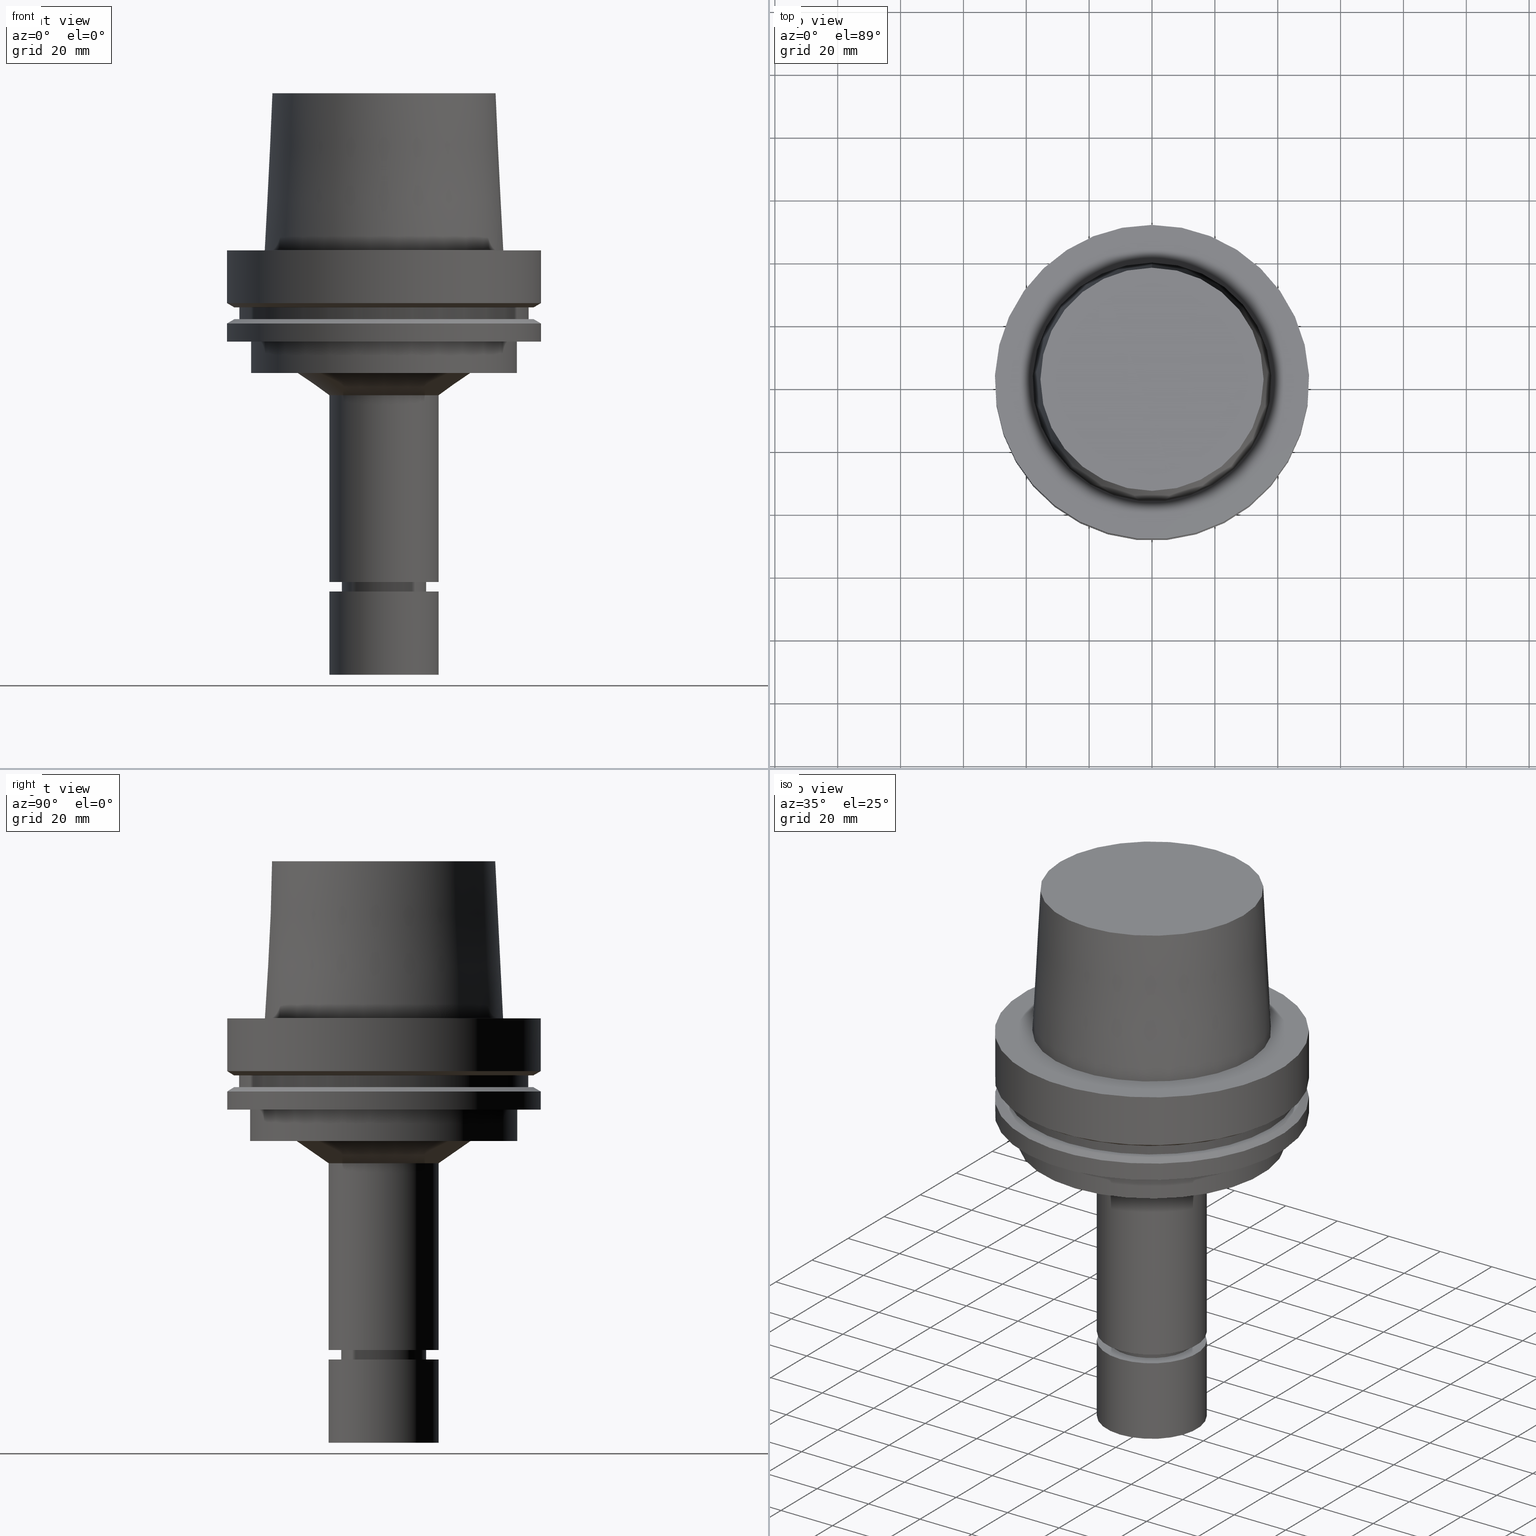
[diagram: canonical four-view strip — front | top / right | iso, engineering-drawing reading convention]
A machine part, canonical four-view strip (front | top / right | iso — engineering-drawing reading convention). The complete STEP part file that produces these views, byte-faithful:
ISO-10303-21;
HEADER;
FILE_DESCRIPTION((''),'1');
FILE_NAME('V:/90_\X2\53D65F9730C730FC30BF\X0\/00_\X2\6DE18DEF30C730FC30BF\X0\/ALL/HSK-BKUS\X2\52A05DE556F3\X0\_201801/HSK-A100-MEGAER/HSK-A100-MEGAER20-135NL.stp','2018-02-01T04:10:40',(''),(''),'Spatial Interop R21 SP3','Kubotek KeyCreator 2011 V10.0.2 (22737)',' ');
FILE_SCHEMA(('automotive_design'));
ENDSEC;
DATA;
#1=MECHANICAL_DESIGN_GEOMETRIC_PRESENTATION_REPRESENTATION(' ',(#14,#15,#16,#17,#18,#19,#20,#21,#22,#23,#24,#25,#26,#27,#28,#29,#30,#31,#32,#33,#34,#35,#36,#37,#38,#39,#40,#41,#42,#43,#44,#45,#46,#47,#48,#49,#50,#51,#52,#53,#54,#55,#56,#57,#58,#59,#60,#61),#10);
#2=PRODUCT_DEFINITION_CONTEXT('',#62,'design');
#3=APPLICATION_PROTOCOL_DEFINITION('INTERNATIONAL STANDARD','automotive_design',1994,#62);
#4=PRODUCT_CATEGORY_RELATIONSHIP('NONE','NONE',#63,#64);
#5=SHAPE_DEFINITION_REPRESENTATION(#65,#66);
#6=PRODUCT_DEFINITION_CONTEXT('',#67,'design');
#7=APPLICATION_PROTOCOL_DEFINITION('INTERNATIONAL STANDARD','automotive_design',1994,#67);
#8=PRODUCT_CATEGORY_RELATIONSHIP('NONE','NONE',#68,#69);
#9=SHAPE_DEFINITION_REPRESENTATION(#70,#71);
#10= (GEOMETRIC_REPRESENTATION_CONTEXT(3)GLOBAL_UNCERTAINTY_ASSIGNED_CONTEXT((#74))GLOBAL_UNIT_ASSIGNED_CONTEXT((#76,#77,#78))REPRESENTATION_CONTEXT('NONE','WORKSPACE'));
#14=STYLED_ITEM('',(#80),#81);
#15=STYLED_ITEM('',(#82),#83);
#16=STYLED_ITEM('',(#84),#85);
#17=STYLED_ITEM('',(#86,#87),#88);
#18=STYLED_ITEM('',(#89),#90);
#19=STYLED_ITEM('',(#91,#92),#93);
#20=STYLED_ITEM('',(#94),#95);
#21=STYLED_ITEM('',(#96,#97),#98);
#22=STYLED_ITEM('',(#99,#100),#101);
#23=STYLED_ITEM('',(#102,#103),#104);
#24=STYLED_ITEM('',(#105),#106);
#25=STYLED_ITEM('',(#107,#108),#109);
#26=STYLED_ITEM('',(#110,#111),#112);
#27=STYLED_ITEM('',(#113,#114),#115);
#28=STYLED_ITEM('',(#116),#117);
#29=STYLED_ITEM('',(#118),#119);
#30=STYLED_ITEM('',(#120),#121);
#31=STYLED_ITEM('',(#122),#123);
#32=STYLED_ITEM('',(#124),#125);
#33=STYLED_ITEM('',(#126,#127),#128);
#34=STYLED_ITEM('',(#129,#130),#131);
#35=STYLED_ITEM('',(#132,#133),#134);
#36=STYLED_ITEM('',(#135),#136);
#37=STYLED_ITEM('',(#137,#138),#139);
#38=STYLED_ITEM('',(#140),#141);
#39=STYLED_ITEM('',(#142,#143),#144);
#40=STYLED_ITEM('',(#145,#146),#147);
#41=STYLED_ITEM('',(#148,#149),#150);
#42=STYLED_ITEM('',(#151),#152);
#43=STYLED_ITEM('',(#153,#154),#155);
#44=STYLED_ITEM('',(#156,#157),#158);
#45=STYLED_ITEM('',(#159),#160);
#46=STYLED_ITEM('',(#161),#162);
#47=STYLED_ITEM('',(#163,#164),#165);
#48=STYLED_ITEM('',(#166),#167);
#49=STYLED_ITEM('',(#168,#169),#170);
#50=STYLED_ITEM('',(#171),#172);
#51=STYLED_ITEM('',(#173,#174),#175);
#52=STYLED_ITEM('',(#176,#177),#178);
#53=STYLED_ITEM('',(#179,#180),#181);
#54=STYLED_ITEM('',(#182),#183);
#55=STYLED_ITEM('',(#184),#185);
#56=STYLED_ITEM('',(#186,#187),#188);
#57=STYLED_ITEM('',(#189,#190),#191);
#58=STYLED_ITEM('',(#192,#193),#194);
#59=STYLED_ITEM('',(#195,#196),#197);
#60=STYLED_ITEM('',(#198),#199);
#61=STYLED_ITEM('',(#200),#201);
#62=APPLICATION_CONTEXT(' ');
#63=PRODUCT_CATEGORY('part','NONE');
#64=PRODUCT_RELATED_PRODUCT_CATEGORY('detail',' ',(#202));
#65=PRODUCT_DEFINITION_SHAPE('NONE','NONE',#203);
#66=ADVANCED_BREP_SHAPE_REPRESENTATION('Unnamed[1]',(#178,#204),#10);
#67=APPLICATION_CONTEXT(' ');
#68=PRODUCT_CATEGORY('part','NONE');
#69=PRODUCT_RELATED_PRODUCT_CATEGORY('detail',' ',(#205));
#70=PRODUCT_DEFINITION_SHAPE('NONE','NONE',#206);
#71=ADVANCED_BREP_SHAPE_REPRESENTATION('Unnamed[1]',(#181,#207),#10);
#74=UNCERTAINTY_MEASURE_WITH_UNIT(LENGTH_MEASURE(1.0E-006),#76,'','');
#76= (CONVERSION_BASED_UNIT('MILLIMETRE',#210)LENGTH_UNIT()NAMED_UNIT(#213));
#77= (NAMED_UNIT(#215)PLANE_ANGLE_UNIT()SI_UNIT($,.RADIAN.));
#78= (NAMED_UNIT(#215)SOLID_ANGLE_UNIT()SI_UNIT($,.STERADIAN.));
#80=PRESENTATION_STYLE_ASSIGNMENT((#221));
#81=EDGE_CURVE('Unnamed[1]',#222,#222,#223,.T.);
#82=PRESENTATION_STYLE_ASSIGNMENT((#224));
#83=EDGE_CURVE('Unnamed[1]',#225,#225,#226,.T.);
#84=PRESENTATION_STYLE_ASSIGNMENT((#227));
#85=EDGE_CURVE('Unnamed[1]',#228,#228,#229,.T.);
#86=PRESENTATION_STYLE_ASSIGNMENT((#230));
#87=PRESENTATION_STYLE_ASSIGNMENT((#231));
#88=ADVANCED_FACE('Unnamed[1]',(#232),#233,.T.);
#89=PRESENTATION_STYLE_ASSIGNMENT((#234));
#90=EDGE_CURVE('Unnamed[1]',#235,#235,#236,.T.);
#91=PRESENTATION_STYLE_ASSIGNMENT((#237));
#92=PRESENTATION_STYLE_ASSIGNMENT((#238));
#93=ADVANCED_FACE('Unnamed[1]',(#239,#240),#241,.T.);
#94=PRESENTATION_STYLE_ASSIGNMENT((#242));
#95=EDGE_CURVE('Unnamed[1]',#243,#243,#244,.T.);
#96=PRESENTATION_STYLE_ASSIGNMENT((#245));
#97=PRESENTATION_STYLE_ASSIGNMENT((#246));
#98=ADVANCED_FACE('Unnamed[1]',(#247,#248),#249,.T.);
#99=PRESENTATION_STYLE_ASSIGNMENT((#250));
#100=PRESENTATION_STYLE_ASSIGNMENT((#251));
#101=ADVANCED_FACE('Unnamed[1]',(#252),#253,.T.);
#102=PRESENTATION_STYLE_ASSIGNMENT((#254));
#103=PRESENTATION_STYLE_ASSIGNMENT((#255));
#104=ADVANCED_FACE('Unnamed[1]',(#256,#257),#258,.T.);
#105=PRESENTATION_STYLE_ASSIGNMENT((#259));
#106=EDGE_CURVE('Unnamed[1]',#260,#260,#261,.T.);
#107=PRESENTATION_STYLE_ASSIGNMENT((#262));
#108=PRESENTATION_STYLE_ASSIGNMENT((#263));
#109=ADVANCED_FACE('Unnamed[1]',(#264,#265),#266,.T.);
#110=PRESENTATION_STYLE_ASSIGNMENT((#267));
#111=PRESENTATION_STYLE_ASSIGNMENT((#268));
#112=ADVANCED_FACE('Unnamed[1]',(#269,#270),#271,.T.);
#113=PRESENTATION_STYLE_ASSIGNMENT((#272));
#114=PRESENTATION_STYLE_ASSIGNMENT((#273));
#115=ADVANCED_FACE('Unnamed[1]',(#274,#275),#276,.T.);
#116=PRESENTATION_STYLE_ASSIGNMENT((#277));
#117=EDGE_CURVE('Unnamed[1]',#278,#278,#279,.T.);
#118=PRESENTATION_STYLE_ASSIGNMENT((#280));
#119=EDGE_CURVE('Unnamed[1]',#281,#281,#282,.T.);
#120=PRESENTATION_STYLE_ASSIGNMENT((#283));
#121=EDGE_CURVE('Unnamed[1]',#284,#284,#285,.T.);
#122=PRESENTATION_STYLE_ASSIGNMENT((#286));
#123=EDGE_CURVE('Unnamed[1]',#287,#287,#288,.T.);
#124=PRESENTATION_STYLE_ASSIGNMENT((#289));
#125=EDGE_CURVE('Unnamed[1]',#290,#290,#291,.T.);
#126=PRESENTATION_STYLE_ASSIGNMENT((#292));
#127=PRESENTATION_STYLE_ASSIGNMENT((#293));
#128=ADVANCED_FACE('Unnamed[1]',(#294,#295),#296,.T.);
#129=PRESENTATION_STYLE_ASSIGNMENT((#297));
#130=PRESENTATION_STYLE_ASSIGNMENT((#298));
#131=ADVANCED_FACE('Unnamed[1]',(#299,#300),#301,.T.);
#132=PRESENTATION_STYLE_ASSIGNMENT((#302));
#133=PRESENTATION_STYLE_ASSIGNMENT((#303));
#134=ADVANCED_FACE('Unnamed[1]',(#304,#305),#306,.T.);
#135=PRESENTATION_STYLE_ASSIGNMENT((#307));
#136=EDGE_CURVE('Unnamed[1]',#308,#308,#309,.T.);
#137=PRESENTATION_STYLE_ASSIGNMENT((#310));
#138=PRESENTATION_STYLE_ASSIGNMENT((#311));
#139=ADVANCED_FACE('Unnamed[1]',(#312,#313),#314,.T.);
#140=PRESENTATION_STYLE_ASSIGNMENT((#315));
#141=EDGE_CURVE('Unnamed[1]',#316,#316,#317,.T.);
#142=PRESENTATION_STYLE_ASSIGNMENT((#318));
#143=PRESENTATION_STYLE_ASSIGNMENT((#319));
#144=ADVANCED_FACE('Unnamed[1]',(#320,#321),#322,.T.);
#145=PRESENTATION_STYLE_ASSIGNMENT((#323));
#146=PRESENTATION_STYLE_ASSIGNMENT((#324));
#147=ADVANCED_FACE('Unnamed[1]',(#325,#326),#327,.T.);
#148=PRESENTATION_STYLE_ASSIGNMENT((#328));
#149=PRESENTATION_STYLE_ASSIGNMENT((#329));
#150=ADVANCED_FACE('Unnamed[1]',(#330),#331,.T.);
#151=PRESENTATION_STYLE_ASSIGNMENT((#332));
#152=EDGE_CURVE('Unnamed[1]',#333,#333,#334,.T.);
#153=PRESENTATION_STYLE_ASSIGNMENT((#335));
#154=PRESENTATION_STYLE_ASSIGNMENT((#336));
#155=ADVANCED_FACE('Unnamed[1]',(#337,#338),#339,.T.);
#156=PRESENTATION_STYLE_ASSIGNMENT((#340));
#157=PRESENTATION_STYLE_ASSIGNMENT((#341));
#158=ADVANCED_FACE('Unnamed[1]',(#342,#343),#344,.T.);
#159=PRESENTATION_STYLE_ASSIGNMENT((#345));
#160=EDGE_CURVE('Unnamed[1]',#346,#346,#347,.T.);
#161=PRESENTATION_STYLE_ASSIGNMENT((#348));
#162=EDGE_CURVE('Unnamed[1]',#349,#349,#350,.T.);
#163=PRESENTATION_STYLE_ASSIGNMENT((#351));
#164=PRESENTATION_STYLE_ASSIGNMENT((#352));
#165=ADVANCED_FACE('Unnamed[1]',(#353,#354),#355,.T.);
#166=PRESENTATION_STYLE_ASSIGNMENT((#356));
#167=EDGE_CURVE('Unnamed[1]',#357,#357,#358,.T.);
#168=PRESENTATION_STYLE_ASSIGNMENT((#359));
#169=PRESENTATION_STYLE_ASSIGNMENT((#360));
#170=ADVANCED_FACE('Unnamed[1]',(#361,#362),#363,.T.);
#171=PRESENTATION_STYLE_ASSIGNMENT((#364));
#172=EDGE_CURVE('Unnamed[1]',#365,#365,#366,.T.);
#173=PRESENTATION_STYLE_ASSIGNMENT((#367));
#174=PRESENTATION_STYLE_ASSIGNMENT((#368));
#175=ADVANCED_FACE('Unnamed[1]',(#369,#370),#371,.T.);
#176=PRESENTATION_STYLE_ASSIGNMENT((#372));
#177=PRESENTATION_STYLE_ASSIGNMENT((#373));
#178=MANIFOLD_SOLID_BREP('Unnamed[1]',#374);
#179=PRESENTATION_STYLE_ASSIGNMENT((#375));
#180=PRESENTATION_STYLE_ASSIGNMENT((#376));
#181=MANIFOLD_SOLID_BREP('Unnamed[1]',#377);
#182=PRESENTATION_STYLE_ASSIGNMENT((#378));
#183=EDGE_CURVE('Unnamed[1]',#379,#379,#380,.T.);
#184=PRESENTATION_STYLE_ASSIGNMENT((#381));
#185=EDGE_CURVE('Unnamed[1]',#382,#382,#383,.T.);
#186=PRESENTATION_STYLE_ASSIGNMENT((#384));
#187=PRESENTATION_STYLE_ASSIGNMENT((#385));
#188=ADVANCED_FACE('Unnamed[1]',(#386,#387),#388,.T.);
#189=PRESENTATION_STYLE_ASSIGNMENT((#389));
#190=PRESENTATION_STYLE_ASSIGNMENT((#390));
#191=ADVANCED_FACE('Unnamed[1]',(#391,#392),#393,.T.);
#192=PRESENTATION_STYLE_ASSIGNMENT((#394));
#193=PRESENTATION_STYLE_ASSIGNMENT((#395));
#194=ADVANCED_FACE('Unnamed[1]',(#396,#397),#398,.T.);
#195=PRESENTATION_STYLE_ASSIGNMENT((#399));
#196=PRESENTATION_STYLE_ASSIGNMENT((#400));
#197=ADVANCED_FACE('Unnamed[1]',(#401),#402,.T.);
#198=PRESENTATION_STYLE_ASSIGNMENT((#403));
#199=EDGE_CURVE('Unnamed[1]',#404,#404,#405,.T.);
#200=PRESENTATION_STYLE_ASSIGNMENT((#406));
#201=EDGE_CURVE('Unnamed[1]',#407,#407,#408,.T.);
#202=PRODUCT('Unnamed[1]','Unnamed[1]','PART-Unnamed[1]-DESC',(#409));
#203=PRODUCT_DEFINITION('NONE','NONE',#410,#2);
#204=AXIS2_PLACEMENT_3D('',#411,#412,#413);
#205=PRODUCT('Unnamed[1]','Unnamed[1]','PART-Unnamed[1]-DESC',(#414));
#206=PRODUCT_DEFINITION('NONE','NONE',#415,#6);
#207=AXIS2_PLACEMENT_3D('',#416,#417,#418);
#210=LENGTH_MEASURE_WITH_UNIT(LENGTH_MEASURE(1.0),#419);
#213=DIMENSIONAL_EXPONENTS(1.0,0.0,0.0,0.0,0.0,0.0,0.0);
#215=DIMENSIONAL_EXPONENTS(0.0,0.0,0.0,0.0,0.0,0.0,0.0);
#221=CURVE_STYLE('',#420,POSITIVE_LENGTH_MEASURE(1000.0),#421);
#222=VERTEX_POINT('',#422);
#223=CIRCLE('',#423,37.9999999999349);
#224=CURVE_STYLE('',#424,POSITIVE_LENGTH_MEASURE(1000.0),#425);
#225=VERTEX_POINT('',#426);
#226=CIRCLE('',#427,42.5);
#227=CURVE_STYLE('',#428,POSITIVE_LENGTH_MEASURE(1000.0),#429);
#228=VERTEX_POINT('',#430);
#229=CIRCLE('',#431,13.5000000000005);
#230=SURFACE_STYLE_USAGE(.BOTH.,#432);
#231=CURVE_STYLE('',#433,POSITIVE_LENGTH_MEASURE(1000.0),#434);
#232=FACE_OUTER_BOUND('',#435,.T.);
#233=PLANE('',#436);
#234=CURVE_STYLE('',#437,POSITIVE_LENGTH_MEASURE(1000.0),#438);
#235=VERTEX_POINT('',#439);
#236=CIRCLE('',#440,17.4999999999945);
#237=SURFACE_STYLE_USAGE(.BOTH.,#441);
#238=CURVE_STYLE('',#442,POSITIVE_LENGTH_MEASURE(1000.0),#443);
#239=FACE_OUTER_BOUND('',#444,.T.);
#240=FACE_BOUND('',#445,.T.);
#241=PLANE('',#446);
#242=CURVE_STYLE('',#447,POSITIVE_LENGTH_MEASURE(1000.0),#448);
#243=VERTEX_POINT('',#449);
#244=CIRCLE('',#450,13.4999999999908);
#245=SURFACE_STYLE_USAGE(.BOTH.,#451);
#246=CURVE_STYLE('',#452,POSITIVE_LENGTH_MEASURE(1000.0),#453);
#247=FACE_BOUND('',#454,.T.);
#248=FACE_OUTER_BOUND('',#455,.T.);
#249=PLANE('',#456);
#250=SURFACE_STYLE_USAGE(.BOTH.,#457);
#251=CURVE_STYLE('',#458,POSITIVE_LENGTH_MEASURE(1000.0),#459);
#252=FACE_OUTER_BOUND('',#460,.T.);
#253=PLANE('',#461);
#254=SURFACE_STYLE_USAGE(.BOTH.,#462);
#255=CURVE_STYLE('',#463,POSITIVE_LENGTH_MEASURE(1000.0),#464);
#256=FACE_BOUND('',#465,.T.);
#257=FACE_BOUND('',#466,.T.);
#258=CONICAL_SURFACE('',#467,22.5717863357245,0.962446965226531);
#259=CURVE_STYLE('',#468,POSITIVE_LENGTH_MEASURE(1000.0),#469);
#260=VERTEX_POINT('',#470);
#261=CIRCLE('',#471,50.0);
#262=SURFACE_STYLE_USAGE(.BOTH.,#472);
#263=CURVE_STYLE('',#473,POSITIVE_LENGTH_MEASURE(1000.0),#474);
#264=FACE_BOUND('',#475,.T.);
#265=FACE_BOUND('',#476,.T.);
#266=CYLINDRICAL_SURFACE('',#477,42.5);
#267=SURFACE_STYLE_USAGE(.BOTH.,#478);
#268=CURVE_STYLE('',#479,POSITIVE_LENGTH_MEASURE(1000.0),#480);
#269=FACE_BOUND('',#481,.T.);
#270=FACE_BOUND('',#482,.T.);
#271=CONICAL_SURFACE('',#483,36.7500000007484,0.0499583956894843);
#272=SURFACE_STYLE_USAGE(.BOTH.,#484);
#273=CURVE_STYLE('',#485,POSITIVE_LENGTH_MEASURE(1000.0),#486);
#274=FACE_BOUND('',#487,.T.);
#275=FACE_OUTER_BOUND('',#488,.T.);
#276=PLANE('',#489);
#277=CURVE_STYLE('',#490,POSITIVE_LENGTH_MEASURE(1000.0),#491);
#278=VERTEX_POINT('',#492);
#279=CIRCLE('',#493,12.4999999999999);
#280=CURVE_STYLE('',#494,POSITIVE_LENGTH_MEASURE(1000.0),#495);
#281=VERTEX_POINT('',#496);
#282=CIRCLE('',#497,17.5);
#283=CURVE_STYLE('',#498,POSITIVE_LENGTH_MEASURE(1000.0),#499);
#284=VERTEX_POINT('',#500);
#285=CIRCLE('',#501,17.5);
#286=CURVE_STYLE('',#502,POSITIVE_LENGTH_MEASURE(1000.0),#503);
#287=VERTEX_POINT('',#504);
#288=CIRCLE('',#505,12.4999999999998);
#289=CURVE_STYLE('',#506,POSITIVE_LENGTH_MEASURE(1000.0),#507);
#290=VERTEX_POINT('',#508);
#291=CIRCLE('',#509,50.0);
#292=SURFACE_STYLE_USAGE(.BOTH.,#510);
#293=CURVE_STYLE('',#511,POSITIVE_LENGTH_MEASURE(1000.0),#512);
#294=FACE_BOUND('',#513,.T.);
#295=FACE_BOUND('',#514,.T.);
#296=CYLINDRICAL_SURFACE('',#515,50.0);
#297=SURFACE_STYLE_USAGE(.BOTH.,#516);
#298=CURVE_STYLE('',#517,POSITIVE_LENGTH_MEASURE(1000.0),#518);
#299=FACE_BOUND('',#519,.T.);
#300=FACE_OUTER_BOUND('',#520,.T.);
#301=PLANE('',#521);
#302=SURFACE_STYLE_USAGE(.BOTH.,#522);
#303=CURVE_STYLE('',#523,POSITIVE_LENGTH_MEASURE(1000.0),#524);
#304=FACE_BOUND('',#525,.T.);
#305=FACE_BOUND('',#526,.T.);
#306=CYLINDRICAL_SURFACE('',#527,17.4999999999972);
#307=CURVE_STYLE('',#528,POSITIVE_LENGTH_MEASURE(1000.0),#529);
#308=VERTEX_POINT('',#530);
#309=CIRCLE('',#531,42.5);
#310=SURFACE_STYLE_USAGE(.BOTH.,#532);
#311=CURVE_STYLE('',#533,POSITIVE_LENGTH_MEASURE(1000.0),#534);
#312=FACE_BOUND('',#535,.T.);
#313=FACE_BOUND('',#536,.T.);
#314=CONICAL_SURFACE('',#537,48.81129763,1.04719755328238);
#315=CURVE_STYLE('',#538,POSITIVE_LENGTH_MEASURE(1000.0),#539);
#316=VERTEX_POINT('',#540);
#317=CIRCLE('',#541,46.0);
#318=SURFACE_STYLE_USAGE(.BOTH.,#542);
#319=CURVE_STYLE('',#543,POSITIVE_LENGTH_MEASURE(1000.0),#544);
#320=FACE_BOUND('',#545,.T.);
#321=FACE_OUTER_BOUND('',#546,.T.);
#322=PLANE('',#547);
#323=SURFACE_STYLE_USAGE(.BOTH.,#548);
#324=CURVE_STYLE('',#549,POSITIVE_LENGTH_MEASURE(1000.0),#550);
#325=FACE_BOUND('',#551,.T.);
#326=FACE_BOUND('',#552,.T.);
#327=CONICAL_SURFACE('',#553,13.0000000000002,1.04719755119489);
#328=SURFACE_STYLE_USAGE(.BOTH.,#554);
#329=CURVE_STYLE('',#555,POSITIVE_LENGTH_MEASURE(1000.0),#556);
#330=FACE_OUTER_BOUND('',#557,.T.);
#331=PLANE('',#558);
#332=CURVE_STYLE('',#559,POSITIVE_LENGTH_MEASURE(1000.0),#560);
#333=VERTEX_POINT('',#561);
#334=CIRCLE('',#562,46.0);
#335=SURFACE_STYLE_USAGE(.BOTH.,#563);
#336=CURVE_STYLE('',#564,POSITIVE_LENGTH_MEASURE(1000.0),#565);
#337=FACE_BOUND('',#566,.T.);
#338=FACE_BOUND('',#567,.T.);
#339=CYLINDRICAL_SURFACE('',#568,17.5);
#340=SURFACE_STYLE_USAGE(.BOTH.,#569);
#341=CURVE_STYLE('',#570,POSITIVE_LENGTH_MEASURE(1000.0),#571);
#342=FACE_OUTER_BOUND('',#572,.T.);
#343=FACE_BOUND('',#573,.T.);
#344=PLANE('',#574);
#345=CURVE_STYLE('',#575,POSITIVE_LENGTH_MEASURE(1000.0),#576);
#346=VERTEX_POINT('',#577);
#347=CIRCLE('',#578,50.0);
#348=CURVE_STYLE('',#579,POSITIVE_LENGTH_MEASURE(1000.0),#580);
#349=VERTEX_POINT('',#581);
#350=CIRCLE('',#582,27.6435726714546);
#351=SURFACE_STYLE_USAGE(.BOTH.,#583);
#352=CURVE_STYLE('',#584,POSITIVE_LENGTH_MEASURE(1000.0),#585);
#353=FACE_BOUND('',#586,.T.);
#354=FACE_BOUND('',#587,.T.);
#355=CONICAL_SURFACE('',#588,48.81129763,1.04719755328238);
#356=CURVE_STYLE('',#589,POSITIVE_LENGTH_MEASURE(1000.0),#590);
#357=VERTEX_POINT('',#591);
#358=CIRCLE('',#592,17.4999999999999);
#359=SURFACE_STYLE_USAGE(.BOTH.,#593);
#360=CURVE_STYLE('',#594,POSITIVE_LENGTH_MEASURE(1000.0),#595);
#361=FACE_BOUND('',#596,.T.);
#362=FACE_BOUND('',#597,.T.);
#363=CYLINDRICAL_SURFACE('',#598,50.0);
#364=CURVE_STYLE('',#599,POSITIVE_LENGTH_MEASURE(1000.0),#600);
#365=VERTEX_POINT('',#601);
#366=CIRCLE('',#602,35.5000000015618);
#367=SURFACE_STYLE_USAGE(.BOTH.,#603);
#368=CURVE_STYLE('',#604,POSITIVE_LENGTH_MEASURE(1000.0),#605);
#369=FACE_BOUND('',#606,.T.);
#370=FACE_BOUND('',#607,.T.);
#371=CONICAL_SURFACE('',#608,11.9499999999988,0.523598775598649);
#372=SURFACE_STYLE_USAGE(.BOTH.,#609);
#373=CURVE_STYLE('',#610,POSITIVE_LENGTH_MEASURE(1000.0),#611);
#374=CLOSED_SHELL('',(#197,#112,#93,#128,#139,#131,#188,#158,#165,#170,#144,#109,#115,#104,#134,#98,#191,#147,#194,#175,#150));
#375=SURFACE_STYLE_USAGE(.BOTH.,#612);
#376=CURVE_STYLE('',#613,POSITIVE_LENGTH_MEASURE(1000.0),#614);
#377=CLOSED_SHELL('',(#101,#88,#155));
#378=CURVE_STYLE('',#615,POSITIVE_LENGTH_MEASURE(1000.0),#616);
#379=VERTEX_POINT('',#617);
#380=CIRCLE('',#618,11.3999999999978);
#381=CURVE_STYLE('',#619,POSITIVE_LENGTH_MEASURE(1000.0),#620);
#382=VERTEX_POINT('',#621);
#383=CIRCLE('',#622,47.62259526);
#384=SURFACE_STYLE_USAGE(.BOTH.,#623);
#385=CURVE_STYLE('',#624,POSITIVE_LENGTH_MEASURE(1000.0),#625);
#386=FACE_BOUND('',#626,.T.);
#387=FACE_BOUND('',#627,.T.);
#388=CYLINDRICAL_SURFACE('',#628,46.0);
#389=SURFACE_STYLE_USAGE(.BOTH.,#629);
#390=CURVE_STYLE('',#630,POSITIVE_LENGTH_MEASURE(1000.0),#631);
#391=FACE_BOUND('',#632,.T.);
#392=FACE_BOUND('',#633,.T.);
#393=CYLINDRICAL_SURFACE('',#634,13.4999999999956);
#394=SURFACE_STYLE_USAGE(.BOTH.,#635);
#395=CURVE_STYLE('',#636,POSITIVE_LENGTH_MEASURE(1000.0),#637);
#396=FACE_BOUND('',#638,.T.);
#397=FACE_BOUND('',#639,.T.);
#398=CYLINDRICAL_SURFACE('',#640,12.4999999999999);
#399=SURFACE_STYLE_USAGE(.BOTH.,#641);
#400=CURVE_STYLE('',#642,POSITIVE_LENGTH_MEASURE(1000.0),#643);
#401=FACE_OUTER_BOUND('',#644,.T.);
#402=PLANE('',#645);
#403=CURVE_STYLE('',#646,POSITIVE_LENGTH_MEASURE(1000.0),#647);
#404=VERTEX_POINT('',#648);
#405=CIRCLE('',#649,47.62259526);
#406=CURVE_STYLE('',#650,POSITIVE_LENGTH_MEASURE(1000.0),#651);
#407=VERTEX_POINT('',#652);
#408=CIRCLE('',#653,50.0);
#409=PRODUCT_CONTEXT('',#62,'mechanical');
#410=PRODUCT_DEFINITION_FORMATION_WITH_SPECIFIED_SOURCE(' ','NONE',#202,.NOT_KNOWN.);
#411=CARTESIAN_POINT('',(0.0,0.0,0.0));
#412=DIRECTION('',(0.0,0.0,1.0));
#413=DIRECTION('',(1.0,0.0,0.0));
#414=PRODUCT_CONTEXT('',#67,'mechanical');
#415=PRODUCT_DEFINITION_FORMATION_WITH_SPECIFIED_SOURCE(' ','NONE',#205,.NOT_KNOWN.);
#416=CARTESIAN_POINT('',(0.0,0.0,0.0));
#417=DIRECTION('',(0.0,0.0,1.0));
#418=DIRECTION('',(1.0,0.0,0.0));
#419= (NAMED_UNIT(#213)LENGTH_UNIT()SI_UNIT(.MILLI.,.METRE.));
#420=DRAUGHTING_PRE_DEFINED_CURVE_FONT('continuous');
#421=COLOUR_RGB('',0.0,1.0,0.0);
#422=CARTESIAN_POINT('',(-3.3636548776863E-032,37.9999999999349,-2.44634216324803E-015));
#423=AXIS2_PLACEMENT_3D('',#655,#656,#657);
#424=DRAUGHTING_PRE_DEFINED_CURVE_FONT('continuous');
#425=COLOUR_RGB('',0.0,1.0,0.0);
#426=CARTESIAN_POINT('',(2.38806125833734E-015,42.5,-39.0));
#427=AXIS2_PLACEMENT_3D('',#658,#659,#660);
#428=DRAUGHTING_PRE_DEFINED_CURVE_FONT('continuous');
#429=COLOUR_RGB('',0.0,1.0,0.0);
#430=CARTESIAN_POINT('',(6.81652644100301E-015,13.5000000000005,-111.322324865405));
#431=AXIS2_PLACEMENT_3D('',#661,#662,#663);
#432=SURFACE_SIDE_STYLE('',(#664));
#433=DRAUGHTING_PRE_DEFINED_CURVE_FONT('continuous');
#434=COLOUR_RGB('',0.0,1.0,0.0);
#435=EDGE_LOOP('',(#665));
#436=AXIS2_PLACEMENT_3D('',#666,#667,#668);
#437=DRAUGHTING_PRE_DEFINED_CURVE_FONT('continuous');
#438=COLOUR_RGB('',0.0,1.0,0.0);
#439=CARTESIAN_POINT('',(2.82064573737398E-015,17.4999999999945,-46.0646406676247));
#440=AXIS2_PLACEMENT_3D('',#669,#670,#671);
#441=SURFACE_SIDE_STYLE('',(#672));
#442=DRAUGHTING_PRE_DEFINED_CURVE_FONT('continuous');
#443=COLOUR_RGB('',0.0,1.0,0.0);
#444=EDGE_LOOP('',(#673));
#445=EDGE_LOOP('',(#674));
#446=AXIS2_PLACEMENT_3D('',#675,#676,#677);
#447=DRAUGHTING_PRE_DEFINED_CURVE_FONT('continuous');
#448=COLOUR_RGB('',0.0,1.0,0.0);
#449=CARTESIAN_POINT('',(6.46001186550228E-015,13.4999999999908,-105.5));
#450=AXIS2_PLACEMENT_3D('',#678,#679,#680);
#451=SURFACE_SIDE_STYLE('',(#681));
#452=DRAUGHTING_PRE_DEFINED_CURVE_FONT('continuous');
#453=COLOUR_RGB('',0.0,1.0,0.0);
#454=EDGE_LOOP('',(#682));
#455=EDGE_LOOP('',(#683));
#456=AXIS2_PLACEMENT_3D('',#684,#685,#686);
#457=SURFACE_SIDE_STYLE('',(#687));
#458=DRAUGHTING_PRE_DEFINED_CURVE_FONT('continuous');
#459=COLOUR_RGB('',0.0,1.0,0.0);
#460=EDGE_LOOP('',(#688));
#461=AXIS2_PLACEMENT_3D('',#689,#690,#691);
#462=SURFACE_SIDE_STYLE('',(#692));
#463=DRAUGHTING_PRE_DEFINED_CURVE_FONT('continuous');
#464=COLOUR_RGB('',0.0,1.0,0.0);
#465=EDGE_LOOP('',(#693));
#466=EDGE_LOOP('',(#694));
#467=AXIS2_PLACEMENT_3D('',#695,#696,#697);
#468=DRAUGHTING_PRE_DEFINED_CURVE_FONT('continuous');
#469=COLOUR_RGB('',0.0,1.0,0.0);
#470=CARTESIAN_POINT('',(1.0257889421431E-015,50.0,-16.75240474));
#471=AXIS2_PLACEMENT_3D('',#698,#699,#700);
#472=SURFACE_SIDE_STYLE('',(#701));
#473=DRAUGHTING_PRE_DEFINED_CURVE_FONT('continuous');
#474=COLOUR_RGB('',0.0,1.0,0.0);
#475=EDGE_LOOP('',(#702));
#476=EDGE_LOOP('',(#703));
#477=AXIS2_PLACEMENT_3D('',#704,#705,#706);
#478=SURFACE_SIDE_STYLE('',(#707));
#479=DRAUGHTING_PRE_DEFINED_CURVE_FONT('continuous');
#480=COLOUR_RGB('',0.0,1.0,0.0);
#481=EDGE_LOOP('',(#708));
#482=EDGE_LOOP('',(#709));
#483=AXIS2_PLACEMENT_3D('',#710,#711,#712);
#484=SURFACE_SIDE_STYLE('',(#713));
#485=DRAUGHTING_PRE_DEFINED_CURVE_FONT('continuous');
#486=COLOUR_RGB('',0.0,1.0,0.0);
#487=EDGE_LOOP('',(#714));
#488=EDGE_LOOP('',(#715));
#489=AXIS2_PLACEMENT_3D('',#716,#717,#718);
#490=DRAUGHTING_PRE_DEFINED_CURVE_FONT('continuous');
#491=COLOUR_RGB('',0.0,1.0,0.0);
#492=CARTESIAN_POINT('',(6.85187894896067E-015,12.4999999999999,-111.899675134597));
#493=AXIS2_PLACEMENT_3D('',#719,#720,#721);
#494=DRAUGHTING_PRE_DEFINED_CURVE_FONT('continuous');
#495=COLOUR_RGB('',0.0,1.0,0.0);
#496=CARTESIAN_POINT('',(8.26636589424462E-015,17.5,-135.0));
#497=AXIS2_PLACEMENT_3D('',#722,#723,#724);
#498=DRAUGHTING_PRE_DEFINED_CURVE_FONT('continuous');
#499=COLOUR_RGB('',0.0,1.0,0.0);
#500=CARTESIAN_POINT('',(6.64370981970575E-015,17.5,-108.500015258789));
#501=AXIS2_PLACEMENT_3D('',#725,#726,#727);
#502=DRAUGHTING_PRE_DEFINED_CURVE_FONT('continuous');
#503=COLOUR_RGB('',0.0,1.0,0.0);
#504=CARTESIAN_POINT('',(7.54962568640259E-015,12.4999999999998,-123.294744111673));
#505=AXIS2_PLACEMENT_3D('',#728,#729,#730);
#506=DRAUGHTING_PRE_DEFINED_CURVE_FONT('continuous');
#507=COLOUR_RGB('',0.0,1.0,0.0);
#508=CARTESIAN_POINT('',(1.42350465615161E-015,50.0,-23.24759526));
#509=AXIS2_PLACEMENT_3D('',#731,#732,#733);
#510=SURFACE_SIDE_STYLE('',(#734));
#511=DRAUGHTING_PRE_DEFINED_CURVE_FONT('continuous');
#512=COLOUR_RGB('',0.0,1.0,0.0);
#513=EDGE_LOOP('',(#735));
#514=EDGE_LOOP('',(#736));
#515=AXIS2_PLACEMENT_3D('',#737,#738,#739);
#516=SURFACE_SIDE_STYLE('',(#740));
#517=DRAUGHTING_PRE_DEFINED_CURVE_FONT('continuous');
#518=COLOUR_RGB('',0.0,1.0,0.0);
#519=EDGE_LOOP('',(#741));
#520=EDGE_LOOP('',(#742));
#521=AXIS2_PLACEMENT_3D('',#743,#744,#745);
#522=SURFACE_SIDE_STYLE('',(#746));
#523=DRAUGHTING_PRE_DEFINED_CURVE_FONT('continuous');
#524=COLOUR_RGB('',0.0,1.0,0.0);
#525=EDGE_LOOP('',(#747));
#526=EDGE_LOOP('',(#748));
#527=AXIS2_PLACEMENT_3D('',#749,#750,#751);
#528=DRAUGHTING_PRE_DEFINED_CURVE_FONT('continuous');
#529=COLOUR_RGB('',0.0,1.0,0.0);
#530=CARTESIAN_POINT('',(1.77573785876366E-015,42.5,-29.0));
#531=AXIS2_PLACEMENT_3D('',#752,#753,#754);
#532=SURFACE_SIDE_STYLE('',(#755));
#533=DRAUGHTING_PRE_DEFINED_CURVE_FONT('continuous');
#534=COLOUR_RGB('',0.0,1.0,0.0);
#535=EDGE_LOOP('',(#756));
#536=EDGE_LOOP('',(#757));
#537=AXIS2_PLACEMENT_3D('',#758,#759,#760);
#538=DRAUGHTING_PRE_DEFINED_CURVE_FONT('continuous');
#539=COLOUR_RGB('',0.0,1.0,0.0);
#540=CARTESIAN_POINT('',(1.10983616172729E-015,46.0,-18.125));
#541=AXIS2_PLACEMENT_3D('',#761,#762,#763);
#542=SURFACE_SIDE_STYLE('',(#764));
#543=DRAUGHTING_PRE_DEFINED_CURVE_FONT('continuous');
#544=COLOUR_RGB('',0.0,1.0,0.0);
#545=EDGE_LOOP('',(#765));
#546=EDGE_LOOP('',(#766));
#547=AXIS2_PLACEMENT_3D('',#767,#768,#769);
#548=SURFACE_SIDE_STYLE('',(#770));
#549=DRAUGHTING_PRE_DEFINED_CURVE_FONT('continuous');
#550=COLOUR_RGB('',0.0,1.0,0.0);
#551=EDGE_LOOP('',(#771));
#552=EDGE_LOOP('',(#772));
#553=AXIS2_PLACEMENT_3D('',#773,#774,#775);
#554=SURFACE_SIDE_STYLE('',(#776));
#555=DRAUGHTING_PRE_DEFINED_CURVE_FONT('continuous');
#556=COLOUR_RGB('',0.0,1.0,0.0);
#557=EDGE_LOOP('',(#777));
#558=AXIS2_PLACEMENT_3D('',#778,#779,#780);
#559=DRAUGHTING_PRE_DEFINED_CURVE_FONT('continuous');
#560=COLOUR_RGB('',0.0,1.0,0.0);
#561=CARTESIAN_POINT('',(1.33945743656742E-015,46.0,-21.875));
#562=AXIS2_PLACEMENT_3D('',#781,#782,#783);
#563=SURFACE_SIDE_STYLE('',(#784));
#564=DRAUGHTING_PRE_DEFINED_CURVE_FONT('continuous');
#565=COLOUR_RGB('',0.0,1.0,0.0);
#566=EDGE_LOOP('',(#785));
#567=EDGE_LOOP('',(#786));
#568=AXIS2_PLACEMENT_3D('',#787,#788,#789);
#569=SURFACE_SIDE_STYLE('',(#790));
#570=DRAUGHTING_PRE_DEFINED_CURVE_FONT('continuous');
#571=COLOUR_RGB('',0.0,1.0,0.0);
#572=EDGE_LOOP('',(#791));
#573=EDGE_LOOP('',(#792));
#574=AXIS2_PLACEMENT_3D('',#793,#794,#795);
#575=DRAUGHTING_PRE_DEFINED_CURVE_FONT('continuous');
#576=COLOUR_RGB('',0.0,1.0,0.0);
#577=CARTESIAN_POINT('',(-1.81547968506605E-031,50.0,-9.76766004263236E-016));
#578=AXIS2_PLACEMENT_3D('',#796,#797,#798);
#579=DRAUGHTING_PRE_DEFINED_CURVE_FONT('continuous');
#580=COLOUR_RGB('',0.0,1.0,0.0);
#581=CARTESIAN_POINT('',(2.38806125833734E-015,27.6435726714546,-39.0));
#582=AXIS2_PLACEMENT_3D('',#799,#800,#801);
#583=SURFACE_SIDE_STYLE('',(#802));
#584=DRAUGHTING_PRE_DEFINED_CURVE_FONT('continuous');
#585=COLOUR_RGB('',0.0,1.0,0.0);
#586=EDGE_LOOP('',(#803));
#587=EDGE_LOOP('',(#804));
#588=AXIS2_PLACEMENT_3D('',#805,#806,#807);
#589=DRAUGHTING_PRE_DEFINED_CURVE_FONT('continuous');
#590=COLOUR_RGB('',0.0,1.0,0.0);
#591=CARTESIAN_POINT('',(6.46001186550228E-015,17.4999999999999,-105.5));
#592=AXIS2_PLACEMENT_3D('',#808,#809,#810);
#593=SURFACE_SIDE_STYLE('',(#811));
#594=DRAUGHTING_PRE_DEFINED_CURVE_FONT('continuous');
#595=COLOUR_RGB('',0.0,1.0,0.0);
#596=EDGE_LOOP('',(#812));
#597=EDGE_LOOP('',(#813));
#598=AXIS2_PLACEMENT_3D('',#814,#815,#816);
#599=DRAUGHTING_PRE_DEFINED_CURVE_FONT('continuous');
#600=COLOUR_RGB('',0.0,1.0,0.0);
#601=CARTESIAN_POINT('',(-3.06161699786838E-015,35.5000000015618,50.0));
#602=AXIS2_PLACEMENT_3D('',#817,#818,#819);
#603=SURFACE_SIDE_STYLE('',(#820));
#604=DRAUGHTING_PRE_DEFINED_CURVE_FONT('continuous');
#605=COLOUR_RGB('',0.0,1.0,0.0);
#606=EDGE_LOOP('',(#821));
#607=EDGE_LOOP('',(#822));
#608=AXIS2_PLACEMENT_3D('',#823,#824,#825);
#609=SURFACE_SIDE_STYLE('',(#826));
#610=DRAUGHTING_PRE_DEFINED_CURVE_FONT('continuous');
#611=COLOUR_RGB('',0.0,1.0,0.0);
#612=SURFACE_SIDE_STYLE('',(#827));
#613=DRAUGHTING_PRE_DEFINED_CURVE_FONT('continuous');
#614=COLOUR_RGB('',0.0,1.0,0.0);
#615=DRAUGHTING_PRE_DEFINED_CURVE_FONT('continuous');
#616=COLOUR_RGB('',0.0,1.0,0.0);
#617=CARTESIAN_POINT('',(7.66628896266244E-015,11.3999999999978,-125.2));
#618=AXIS2_PLACEMENT_3D('',#828,#829,#830);
#619=DRAUGHTING_PRE_DEFINED_CURVE_FONT('continuous');
#620=COLOUR_RGB('',0.0,1.0,0.0);
#621=CARTESIAN_POINT('',(1.33945743656742E-015,47.62259526,-21.875));
#622=AXIS2_PLACEMENT_3D('',#831,#832,#833);
#623=SURFACE_SIDE_STYLE('',(#834));
#624=DRAUGHTING_PRE_DEFINED_CURVE_FONT('continuous');
#625=COLOUR_RGB('',0.0,1.0,0.0);
#626=EDGE_LOOP('',(#835));
#627=EDGE_LOOP('',(#836));
#628=AXIS2_PLACEMENT_3D('',#837,#838,#839);
#629=SURFACE_SIDE_STYLE('',(#840));
#630=DRAUGHTING_PRE_DEFINED_CURVE_FONT('continuous');
#631=COLOUR_RGB('',0.0,1.0,0.0);
#632=EDGE_LOOP('',(#841));
#633=EDGE_LOOP('',(#842));
#634=AXIS2_PLACEMENT_3D('',#843,#844,#845);
#635=SURFACE_SIDE_STYLE('',(#846));
#636=DRAUGHTING_PRE_DEFINED_CURVE_FONT('continuous');
#637=COLOUR_RGB('',0.0,1.0,0.0);
#638=EDGE_LOOP('',(#847));
#639=EDGE_LOOP('',(#848));
#640=AXIS2_PLACEMENT_3D('',#849,#850,#851);
#641=SURFACE_SIDE_STYLE('',(#852));
#642=DRAUGHTING_PRE_DEFINED_CURVE_FONT('continuous');
#643=COLOUR_RGB('',0.0,1.0,0.0);
#644=EDGE_LOOP('',(#853));
#645=AXIS2_PLACEMENT_3D('',#854,#855,#856);
#646=DRAUGHTING_PRE_DEFINED_CURVE_FONT('continuous');
#647=COLOUR_RGB('',0.0,1.0,0.0);
#648=CARTESIAN_POINT('',(1.10983616172729E-015,47.62259526,-18.125));
#649=AXIS2_PLACEMENT_3D('',#857,#858,#859);
#650=DRAUGHTING_PRE_DEFINED_CURVE_FONT('continuous');
#651=COLOUR_RGB('',0.0,1.0,0.0);
#652=CARTESIAN_POINT('',(1.77573785876366E-015,50.0,-29.0));
#653=AXIS2_PLACEMENT_3D('',#860,#861,#862);
#655=CARTESIAN_POINT('',(0.0,0.0,0.0));
#656=DIRECTION('',(6.12323399573677E-017,1.22464679914704E-016,-1.0));
#657=DIRECTION('',(-1.23259516440805E-032,1.0,1.22464679914704E-016));
#658=CARTESIAN_POINT('',(2.38806125833734E-015,4.77612251667468E-015,-39.0));
#659=DIRECTION('',(6.12323399573677E-017,1.22464679914687E-016,-1.0));
#660=DIRECTION('',(-1.23259516440783E-032,1.0,1.22464679914687E-016));
#661=CARTESIAN_POINT('',(6.81652644100301E-015,1.3633052882006E-014,-111.322324865405));
#662=DIRECTION('',(6.12323399573677E-017,1.22464679914749E-016,-1.0));
#663=DIRECTION('',(-1.23259516440779E-032,1.0,1.22464679914749E-016));
#664=SURFACE_STYLE_FILL_AREA(#863);
#665=ORIENTED_EDGE('',*,*,#121,.F.);
#666=CARTESIAN_POINT('',(6.64370981970575E-015,8.75000000000002,-108.500015258789));
#667=DIRECTION('',(-6.12323399573677E-017,-1.22464679914735E-016,1.0));
#668=DIRECTION('',(1.23259516440783E-032,-1.0,-1.22464679914735E-016));
#669=CARTESIAN_POINT('',(2.82064573737398E-015,5.64129147474796E-015,-46.0646406676247));
#670=DIRECTION('',(6.12323399573677E-017,1.22464679914747E-016,-1.0));
#671=DIRECTION('',(-1.23259516440822E-032,1.0,1.22464679914747E-016));
#672=SURFACE_STYLE_FILL_AREA(#864);
#673=ORIENTED_EDGE('',*,*,#160,.F.);
#674=ORIENTED_EDGE('',*,*,#81,.T.);
#675=CARTESIAN_POINT('',(-1.07592258641734E-031,43.9999999999675,-1.71155408375563E-015));
#676=DIRECTION('',(-6.12323399573677E-017,-1.22464679914735E-016,1.0));
#677=DIRECTION('',(1.23259516440783E-032,-1.0,-1.22464679914735E-016));
#678=CARTESIAN_POINT('',(6.46001186550228E-015,1.29200237310045E-014,-105.5));
#679=DIRECTION('',(6.12323399573677E-017,1.22464679914717E-016,-1.0));
#680=DIRECTION('',(-1.23259516440734E-032,1.0,1.22464679914717E-016));
#681=SURFACE_STYLE_FILL_AREA(#865);
#682=ORIENTED_EDGE('',*,*,#95,.F.);
#683=ORIENTED_EDGE('',*,*,#167,.T.);
#684=CARTESIAN_POINT('',(6.46001186550228E-015,15.4999999999954,-105.5));
#685=DIRECTION('',(6.12323399573677E-017,1.22464679914735E-016,-1.0));
#686=DIRECTION('',(-1.23259516440783E-032,1.0,1.22464679914735E-016));
#687=SURFACE_STYLE_FILL_AREA(#866);
#688=ORIENTED_EDGE('',*,*,#119,.T.);
#689=CARTESIAN_POINT('',(8.26636589424462E-015,8.75000000000002,-135.0));
#690=DIRECTION('',(6.12323399573677E-017,1.22464679914735E-016,-1.0));
#691=DIRECTION('',(-1.23259516440783E-032,1.0,1.22464679914735E-016));
#692=SURFACE_STYLE_FILL_AREA(#867);
#693=ORIENTED_EDGE('',*,*,#90,.F.);
#694=ORIENTED_EDGE('',*,*,#162,.T.);
#695=CARTESIAN_POINT('',(2.60435349785566E-015,5.20870699571131E-015,-42.5323203338123));
#696=DIRECTION('',(-6.12323399573677E-017,-1.22464679914734E-016,1.0));
#697=DIRECTION('',(-1.232595164408E-032,1.0,1.22464679914734E-016));
#698=CARTESIAN_POINT('',(1.0257889421431E-015,2.05157788428619E-015,-16.75240474));
#699=DIRECTION('',(6.12323399573677E-017,1.22464679914672E-016,-1.0));
#700=DIRECTION('',(-1.23259516440783E-032,1.0,1.22464679914672E-016));
#701=SURFACE_STYLE_FILL_AREA(#868);
#702=ORIENTED_EDGE('',*,*,#83,.F.);
#703=ORIENTED_EDGE('',*,*,#136,.T.);
#704=CARTESIAN_POINT('',(2.0818995585505E-015,4.163799117101E-015,-34.0));
#705=DIRECTION('',(6.12323399573677E-017,1.22464679914687E-016,-1.0));
#706=DIRECTION('',(-1.23259516440783E-032,1.0,1.22464679914687E-016));
#707=SURFACE_STYLE_FILL_AREA(#869);
#708=ORIENTED_EDGE('',*,*,#81,.F.);
#709=ORIENTED_EDGE('',*,*,#172,.T.);
#710=CARTESIAN_POINT('',(-1.53080849893419E-015,-3.06161699786838E-015,25.0));
#711=DIRECTION('',(6.12323399573676E-017,1.22464679914694E-016,-1.0));
#712=DIRECTION('',(-1.23259516440811E-032,1.0,1.22464679914694E-016));
#713=SURFACE_STYLE_FILL_AREA(#870);
#714=ORIENTED_EDGE('',*,*,#162,.F.);
#715=ORIENTED_EDGE('',*,*,#83,.T.);
#716=CARTESIAN_POINT('',(2.38806125833734E-015,35.0717863357273,-39.0));
#717=DIRECTION('',(6.12323399573677E-017,-3.70371893770296E-015,-1.0));
#718=DIRECTION('',(2.21960224369199E-031,1.0,-3.70371893770296E-015));
#719=CARTESIAN_POINT('',(6.85187894896067E-015,1.37037578979213E-014,-111.899675134597));
#720=DIRECTION('',(6.12323399573677E-017,1.22464679914672E-016,-1.0));
#721=DIRECTION('',(-1.23259516440784E-032,1.0,1.22464679914672E-016));
#722=CARTESIAN_POINT('',(8.26636589424462E-015,1.65327317884892E-014,-135.0));
#723=DIRECTION('',(6.12323399573677E-017,1.22464679914735E-016,-1.0));
#724=DIRECTION('',(-1.23259516440783E-032,1.0,1.22464679914735E-016));
#725=CARTESIAN_POINT('',(6.64370981970575E-015,1.32874196394115E-014,-108.500015258789));
#726=DIRECTION('',(6.12323399573677E-017,1.22464679914735E-016,-1.0));
#727=DIRECTION('',(-1.23259516440783E-032,1.0,1.22464679914735E-016));
#728=CARTESIAN_POINT('',(7.54962568640259E-015,1.50992513728052E-014,-123.294744111673));
#729=DIRECTION('',(6.12323399573677E-017,1.22464679914674E-016,-1.0));
#730=DIRECTION('',(-1.23259516440785E-032,1.0,1.22464679914673E-016));
#731=CARTESIAN_POINT('',(1.42350465615161E-015,2.84700931230322E-015,-23.24759526));
#732=DIRECTION('',(6.12323399573677E-017,1.22464679914672E-016,-1.0));
#733=DIRECTION('',(-1.23259516440783E-032,1.0,1.22464679914672E-016));
#734=SURFACE_STYLE_FILL_AREA(#871);
#735=ORIENTED_EDGE('',*,*,#106,.F.);
#736=ORIENTED_EDGE('',*,*,#160,.T.);
#737=CARTESIAN_POINT('',(5.12894471071548E-016,1.0257889421431E-015,-8.37620236999999));
#738=DIRECTION('',(6.12323399573677E-017,1.22464679914672E-016,-1.0));
#739=DIRECTION('',(-1.23259516440783E-032,1.0,1.22464679914672E-016));
#740=SURFACE_STYLE_FILL_AREA(#872);
#741=ORIENTED_EDGE('',*,*,#141,.F.);
#742=ORIENTED_EDGE('',*,*,#199,.T.);
#743=CARTESIAN_POINT('',(1.10983616172729E-015,46.81129763,-18.125));
#744=DIRECTION('',(6.12323399573677E-017,1.22464679914735E-016,-1.0));
#745=DIRECTION('',(-1.23259516440783E-032,1.0,1.22464679914735E-016));
#746=SURFACE_STYLE_FILL_AREA(#873);
#747=ORIENTED_EDGE('',*,*,#167,.F.);
#748=ORIENTED_EDGE('',*,*,#90,.T.);
#749=CARTESIAN_POINT('',(4.64032880143813E-015,9.28065760287625E-015,-75.7823203338123));
#750=DIRECTION('',(6.12323399573677E-017,1.22464679914728E-016,-1.0));
#751=DIRECTION('',(-1.23259516440803E-032,1.0,1.22464679914728E-016));
#752=CARTESIAN_POINT('',(1.77573785876366E-015,3.55147571752733E-015,-29.0));
#753=DIRECTION('',(6.12323399573677E-017,1.22464679914687E-016,-1.0));
#754=DIRECTION('',(-1.23259516440783E-032,1.0,1.22464679914687E-016));
#755=SURFACE_STYLE_FILL_AREA(#874);
#756=ORIENTED_EDGE('',*,*,#199,.F.);
#757=ORIENTED_EDGE('',*,*,#106,.T.);
#758=CARTESIAN_POINT('',(1.06781255193519E-015,2.13562510387038E-015,-17.43870237));
#759=DIRECTION('',(-6.12323399573677E-017,-1.22464679914711E-016,1.0));
#760=DIRECTION('',(-1.23259516440755E-032,1.0,1.22464679914711E-016));
#761=CARTESIAN_POINT('',(1.10983616172729E-015,2.21967232345458E-015,-18.125));
#762=DIRECTION('',(6.12323399573677E-017,1.22464679914716E-016,-1.0));
#763=DIRECTION('',(-1.23259516440783E-032,1.0,1.22464679914716E-016));
#764=SURFACE_STYLE_FILL_AREA(#875);
#765=ORIENTED_EDGE('',*,*,#136,.F.);
#766=ORIENTED_EDGE('',*,*,#201,.T.);
#767=CARTESIAN_POINT('',(1.77573785876366E-015,46.25,-29.0));
#768=DIRECTION('',(6.12323399573677E-017,1.22464679914735E-016,-1.0));
#769=DIRECTION('',(-1.23259516440783E-032,1.0,1.22464679914735E-016));
#770=SURFACE_STYLE_FILL_AREA(#876);
#771=ORIENTED_EDGE('',*,*,#117,.F.);
#772=ORIENTED_EDGE('',*,*,#85,.T.);
#773=CARTESIAN_POINT('',(6.83420269498184E-015,1.36684053899637E-014,-111.611000000001));
#774=DIRECTION('',(-6.12323399573677E-017,-1.22464679914774E-016,1.0));
#775=DIRECTION('',(-1.23259516440781E-032,1.0,1.22464679914774E-016));
#776=SURFACE_STYLE_FILL_AREA(#877);
#777=ORIENTED_EDGE('',*,*,#183,.T.);
#778=CARTESIAN_POINT('',(7.66628896266244E-015,5.69999999999891,-125.2));
#779=DIRECTION('',(6.12323399573677E-017,-1.23431973509666E-014,-1.0));
#780=DIRECTION('',(7.50975703624499E-031,1.0,-1.23431973509666E-014));
#781=CARTESIAN_POINT('',(1.33945743656742E-015,2.67891487313484E-015,-21.875));
#782=DIRECTION('',(6.12323399573677E-017,1.22464679914716E-016,-1.0));
#783=DIRECTION('',(-1.23259516440783E-032,1.0,1.22464679914716E-016));
#784=SURFACE_STYLE_FILL_AREA(#878);
#785=ORIENTED_EDGE('',*,*,#119,.F.);
#786=ORIENTED_EDGE('',*,*,#121,.T.);
#787=CARTESIAN_POINT('',(7.45503785697519E-015,1.49100757139504E-014,-121.750007629394));
#788=DIRECTION('',(6.12323399573677E-017,1.22464679914735E-016,-1.0));
#789=DIRECTION('',(-1.23259516440783E-032,1.0,1.22464679914735E-016));
#790=SURFACE_STYLE_FILL_AREA(#879);
#791=ORIENTED_EDGE('',*,*,#185,.F.);
#792=ORIENTED_EDGE('',*,*,#152,.T.);
#793=CARTESIAN_POINT('',(1.33945743656742E-015,46.81129763,-21.875));
#794=DIRECTION('',(-6.12323399573677E-017,-1.22464679914735E-016,1.0));
#795=DIRECTION('',(1.23259516440783E-032,-1.0,-1.22464679914735E-016));
#796=CARTESIAN_POINT('',(0.0,0.0,0.0));
#797=DIRECTION('',(6.12323399573677E-017,1.22464679914672E-016,-1.0));
#798=DIRECTION('',(-1.23259516440783E-032,1.0,1.22464679914672E-016));
#799=CARTESIAN_POINT('',(2.38806125833734E-015,4.77612251667467E-015,-38.9999999999999));
#800=DIRECTION('',(6.12323399573677E-017,1.22464679914726E-016,-1.0));
#801=DIRECTION('',(-1.23259516440786E-032,1.0,1.22464679914726E-016));
#802=SURFACE_STYLE_FILL_AREA(#880);
#803=ORIENTED_EDGE('',*,*,#125,.F.);
#804=ORIENTED_EDGE('',*,*,#185,.T.);
#805=CARTESIAN_POINT('',(1.38148104635951E-015,2.76296209271903E-015,-22.56129763));
#806=DIRECTION('',(6.12323399573677E-017,1.22464679914711E-016,-1.0));
#807=DIRECTION('',(-1.23259516440755E-032,1.0,1.22464679914711E-016));
#808=CARTESIAN_POINT('',(6.46001186550228E-015,1.29200237310045E-014,-105.5));
#809=DIRECTION('',(6.12323399573677E-017,1.22464679914709E-016,-1.0));
#810=DIRECTION('',(-1.23259516440784E-032,1.0,1.22464679914709E-016));
#811=SURFACE_STYLE_FILL_AREA(#881);
#812=ORIENTED_EDGE('',*,*,#201,.F.);
#813=ORIENTED_EDGE('',*,*,#125,.T.);
#814=CARTESIAN_POINT('',(1.59962125745764E-015,3.19924251491527E-015,-26.12379763));
#815=DIRECTION('',(6.12323399573677E-017,1.22464679914672E-016,-1.0));
#816=DIRECTION('',(-1.23259516440783E-032,1.0,1.22464679914672E-016));
#817=CARTESIAN_POINT('',(-3.06161699786838E-015,-6.12323399573676E-015,50.0));
#818=DIRECTION('',(6.12323399573677E-017,1.22464679914683E-016,-1.0));
#819=DIRECTION('',(-1.23259516440817E-032,1.0,1.22464679914683E-016));
#820=SURFACE_STYLE_FILL_AREA(#882);
#821=ORIENTED_EDGE('',*,*,#183,.F.);
#822=ORIENTED_EDGE('',*,*,#123,.T.);
#823=CARTESIAN_POINT('',(7.60795732453252E-015,1.5215914649065E-014,-124.247372055836));
#824=DIRECTION('',(-6.12323399573677E-017,-1.22464679914789E-016,1.0));
#825=DIRECTION('',(-1.23259516440765E-032,1.0,1.22464679914789E-016));
#826=SURFACE_STYLE_FILL_AREA(#883);
#827=SURFACE_STYLE_FILL_AREA(#884);
#828=CARTESIAN_POINT('',(7.66628896266244E-015,1.53325779253249E-014,-125.2));
#829=DIRECTION('',(6.12323399573677E-017,1.22464679914773E-016,-1.0));
#830=DIRECTION('',(-1.23259516440744E-032,1.0,1.22464679914773E-016));
#831=CARTESIAN_POINT('',(1.33945743656742E-015,2.67891487313484E-015,-21.875));
#832=DIRECTION('',(6.12323399573676E-017,1.22464679914752E-016,-1.0));
#833=DIRECTION('',(-1.23259516440801E-032,1.0,1.22464679914752E-016));
#834=SURFACE_STYLE_FILL_AREA(#885);
#835=ORIENTED_EDGE('',*,*,#152,.F.);
#836=ORIENTED_EDGE('',*,*,#141,.T.);
#837=CARTESIAN_POINT('',(1.22464679914735E-015,2.44929359829471E-015,-20.0));
#838=DIRECTION('',(6.12323399573677E-017,1.22464679914716E-016,-1.0));
#839=DIRECTION('',(-1.23259516440783E-032,1.0,1.22464679914716E-016));
#840=SURFACE_STYLE_FILL_AREA(#886);
#841=ORIENTED_EDGE('',*,*,#85,.F.);
#842=ORIENTED_EDGE('',*,*,#95,.T.);
#843=CARTESIAN_POINT('',(6.63826915325264E-015,1.32765383065053E-014,-108.411162432703));
#844=DIRECTION('',(6.12323399573677E-017,1.22464679914792E-016,-1.0));
#845=DIRECTION('',(-1.23259516440823E-032,1.0,1.22464679914792E-016));
#846=SURFACE_STYLE_FILL_AREA(#887);
#847=ORIENTED_EDGE('',*,*,#123,.F.);
#848=ORIENTED_EDGE('',*,*,#117,.T.);
#849=CARTESIAN_POINT('',(7.20075231768163E-015,1.44015046353633E-014,-117.597209623135));
#850=DIRECTION('',(6.12323399573677E-017,1.22464679914673E-016,-1.0));
#851=DIRECTION('',(-1.23259516440785E-032,1.0,1.22464679914673E-016));
#852=SURFACE_STYLE_FILL_AREA(#888);
#853=ORIENTED_EDGE('',*,*,#172,.F.);
#854=CARTESIAN_POINT('',(-3.06161699786838E-015,17.7500000007809,50.0));
#855=DIRECTION('',(-6.12323399573677E-017,-1.22464679914735E-016,1.0));
#856=DIRECTION('',(1.23259516440783E-032,-1.0,-1.22464679914735E-016));
#857=CARTESIAN_POINT('',(1.10983616172729E-015,2.21967232345458E-015,-18.125));
#858=DIRECTION('',(6.12323399573676E-017,1.22464679914752E-016,-1.0));
#859=DIRECTION('',(-1.23259516440801E-032,1.0,1.22464679914752E-016));
#860=CARTESIAN_POINT('',(1.77573785876366E-015,3.55147571752733E-015,-29.0));
#861=DIRECTION('',(6.12323399573677E-017,1.22464679914672E-016,-1.0));
#862=DIRECTION('',(-1.23259516440783E-032,1.0,1.22464679914672E-016));
#863=FILL_AREA_STYLE('',(#889));
#864=FILL_AREA_STYLE('',(#890));
#865=FILL_AREA_STYLE('',(#891));
#866=FILL_AREA_STYLE('',(#892));
#867=FILL_AREA_STYLE('',(#893));
#868=FILL_AREA_STYLE('',(#894));
#869=FILL_AREA_STYLE('',(#895));
#870=FILL_AREA_STYLE('',(#896));
#871=FILL_AREA_STYLE('',(#897));
#872=FILL_AREA_STYLE('',(#898));
#873=FILL_AREA_STYLE('',(#899));
#874=FILL_AREA_STYLE('',(#900));
#875=FILL_AREA_STYLE('',(#901));
#876=FILL_AREA_STYLE('',(#902));
#877=FILL_AREA_STYLE('',(#903));
#878=FILL_AREA_STYLE('',(#904));
#879=FILL_AREA_STYLE('',(#905));
#880=FILL_AREA_STYLE('',(#906));
#881=FILL_AREA_STYLE('',(#907));
#882=FILL_AREA_STYLE('',(#908));
#883=FILL_AREA_STYLE('',(#909));
#884=FILL_AREA_STYLE('',(#910));
#885=FILL_AREA_STYLE('',(#911));
#886=FILL_AREA_STYLE('',(#912));
#887=FILL_AREA_STYLE('',(#913));
#888=FILL_AREA_STYLE('',(#914));
#889=FILL_AREA_STYLE_COLOUR('',#915);
#890=FILL_AREA_STYLE_COLOUR('',#916);
#891=FILL_AREA_STYLE_COLOUR('',#917);
#892=FILL_AREA_STYLE_COLOUR('',#918);
#893=FILL_AREA_STYLE_COLOUR('',#919);
#894=FILL_AREA_STYLE_COLOUR('',#920);
#895=FILL_AREA_STYLE_COLOUR('',#921);
#896=FILL_AREA_STYLE_COLOUR('',#922);
#897=FILL_AREA_STYLE_COLOUR('',#923);
#898=FILL_AREA_STYLE_COLOUR('',#924);
#899=FILL_AREA_STYLE_COLOUR('',#925);
#900=FILL_AREA_STYLE_COLOUR('',#926);
#901=FILL_AREA_STYLE_COLOUR('',#927);
#902=FILL_AREA_STYLE_COLOUR('',#928);
#903=FILL_AREA_STYLE_COLOUR('',#929);
#904=FILL_AREA_STYLE_COLOUR('',#930);
#905=FILL_AREA_STYLE_COLOUR('',#931);
#906=FILL_AREA_STYLE_COLOUR('',#932);
#907=FILL_AREA_STYLE_COLOUR('',#933);
#908=FILL_AREA_STYLE_COLOUR('',#934);
#909=FILL_AREA_STYLE_COLOUR('',#935);
#910=FILL_AREA_STYLE_COLOUR('',#936);
#911=FILL_AREA_STYLE_COLOUR('',#937);
#912=FILL_AREA_STYLE_COLOUR('',#938);
#913=FILL_AREA_STYLE_COLOUR('',#939);
#914=FILL_AREA_STYLE_COLOUR('',#940);
#915=COLOUR_RGB('',0.0,1.0,0.0);
#916=COLOUR_RGB('',0.0,1.0,0.0);
#917=COLOUR_RGB('',0.0,1.0,0.0);
#918=COLOUR_RGB('',0.0,1.0,0.0);
#919=COLOUR_RGB('',0.0,1.0,0.0);
#920=COLOUR_RGB('',0.0,1.0,0.0);
#921=COLOUR_RGB('',0.0,1.0,0.0);
#922=COLOUR_RGB('',0.0,1.0,0.0);
#923=COLOUR_RGB('',0.0,1.0,0.0);
#924=COLOUR_RGB('',0.0,1.0,0.0);
#925=COLOUR_RGB('',0.0,1.0,0.0);
#926=COLOUR_RGB('',0.0,1.0,0.0);
#927=COLOUR_RGB('',0.0,1.0,0.0);
#928=COLOUR_RGB('',0.0,1.0,0.0);
#929=COLOUR_RGB('',0.0,1.0,0.0);
#930=COLOUR_RGB('',0.0,1.0,0.0);
#931=COLOUR_RGB('',0.0,1.0,0.0);
#932=COLOUR_RGB('',0.0,1.0,0.0);
#933=COLOUR_RGB('',0.0,1.0,0.0);
#934=COLOUR_RGB('',0.0,1.0,0.0);
#935=COLOUR_RGB('',0.0,1.0,0.0);
#936=COLOUR_RGB('',0.0,1.0,0.0);
#937=COLOUR_RGB('',0.0,1.0,0.0);
#938=COLOUR_RGB('',0.0,1.0,0.0);
#939=COLOUR_RGB('',0.0,1.0,0.0);
#940=COLOUR_RGB('',0.0,1.0,0.0);
ENDSEC;
END-ISO-10303-21;
